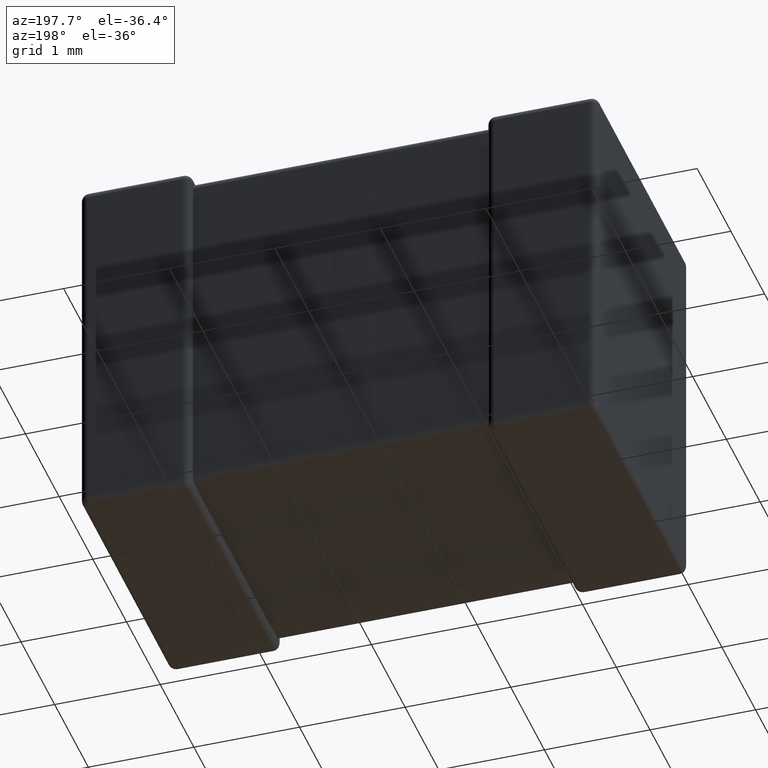
[diagram: clean part render]
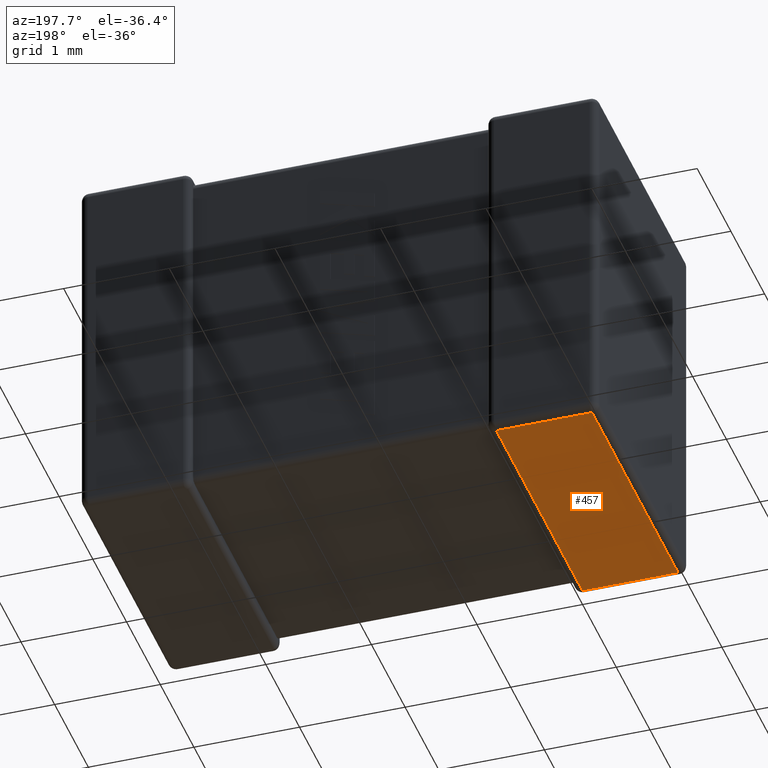
[diagram: same view with one face highlighted and labeled with its STEP entity id]
A machine part, auxiliary view. The second image highlights one B-rep face of the part: STEP entity #457.
In plain terms, the highlighted planar face has unit normal (0, 0, 1).
Its self-contained STEP definition (entity closure, byte-faithful):
#17 = EDGE_LOOP ( 'NONE', ( #2941, #615, #3793, #2574 ) ) ;
#123 = EDGE_CURVE ( 'NONE', #1282, #142, #1739, .T. ) ;
#131 = LINE ( 'NONE', #909, #798 ) ;
#142 = VERTEX_POINT ( 'NONE', #1394 ) ;
#338 = DIRECTION ( 'NONE',  ( 1.000000000000000000, 0.000000000000000000, -0.000000000000000000 ) ) ;
#457 = ADVANCED_FACE ( 'NONE', ( #1034 ), #4162, .F. ) ;
#615 = ORIENTED_EDGE ( 'NONE', *, *, #123, .T. ) ;
#654 = EDGE_CURVE ( 'NONE', #2698, #1282, #131, .T. ) ;
#798 = VECTOR ( 'NONE', #3363, 1000.000000000000000 ) ;
#802 = CARTESIAN_POINT ( 'NONE',  ( 4.900000000000000355, 2.627200000000000202, -3.500000000000000000 ) ) ;
#909 = CARTESIAN_POINT ( 'NONE',  ( 0.9772000000000000686, 0.000000000000000000, -3.500000000000000000 ) ) ;
#1034 = FACE_OUTER_BOUND ( 'NONE', #17, .T. ) ;
#1036 = CARTESIAN_POINT ( 'NONE',  ( 4.900000000000000355, 0.07280000000000000360, -3.500000000000000000 ) ) ;
#1213 = CARTESIAN_POINT ( 'NONE',  ( 0.9772000000000000686, 0.07280000000000000360, -3.500000000000000000 ) ) ;
#1282 = VERTEX_POINT ( 'NONE', #1213 ) ;
#1394 = CARTESIAN_POINT ( 'NONE',  ( 0.07279999999999960114, 0.07280000000000000360, -3.500000000000000000 ) ) ;
#1739 = LINE ( 'NONE', #1036, #3659 ) ;
#1847 = VECTOR ( 'NONE', #2726, 1000.000000000000000 ) ;
#2191 = DIRECTION ( 'NONE',  ( 1.000000000000000000, -0.000000000000000000, -0.000000000000000000 ) ) ;
#2349 = EDGE_CURVE ( 'NONE', #142, #3260, #3096, .T. ) ;
#2417 = DIRECTION ( 'NONE',  ( -1.000000000000000000, -0.000000000000000000, 0.000000000000000000 ) ) ;
#2502 = CARTESIAN_POINT ( 'NONE',  ( 0.07279999999999960114, 2.627200000000000202, -3.500000000000000000 ) ) ;
#2531 = LINE ( 'NONE', #802, #3842 ) ;
#2574 = ORIENTED_EDGE ( 'NONE', *, *, #3251, .T. ) ;
#2698 = VERTEX_POINT ( 'NONE', #3424 ) ;
#2726 = DIRECTION ( 'NONE',  ( 0.000000000000000000, 1.000000000000000000, -0.000000000000000000 ) ) ;
#2734 = DIRECTION ( 'NONE',  ( 0.000000000000000000, 0.000000000000000000, 1.000000000000000000 ) ) ;
#2807 = CARTESIAN_POINT ( 'NONE',  ( 4.900000000000000355, 0.000000000000000000, -3.500000000000000000 ) ) ;
#2941 = ORIENTED_EDGE ( 'NONE', *, *, #654, .T. ) ;
#3096 = LINE ( 'NONE', #4472, #1847 ) ;
#3251 = EDGE_CURVE ( 'NONE', #3260, #2698, #2531, .T. ) ;
#3260 = VERTEX_POINT ( 'NONE', #2502 ) ;
#3363 = DIRECTION ( 'NONE',  ( 0.000000000000000000, -1.000000000000000000, 0.000000000000000000 ) ) ;
#3424 = CARTESIAN_POINT ( 'NONE',  ( 0.9772000000000000686, 2.627200000000000202, -3.500000000000000000 ) ) ;
#3659 = VECTOR ( 'NONE', #2417, 1000.000000000000000 ) ;
#3662 = AXIS2_PLACEMENT_3D ( 'NONE', #2807, #2734, #338 ) ;
#3793 = ORIENTED_EDGE ( 'NONE', *, *, #2349, .T. ) ;
#3842 = VECTOR ( 'NONE', #2191, 1000.000000000000000 ) ;
#4162 = PLANE ( 'NONE',  #3662 ) ;
#4472 = CARTESIAN_POINT ( 'NONE',  ( 0.07279999999999960114, 2.700000000000000178, -3.500000000000000000 ) ) ;